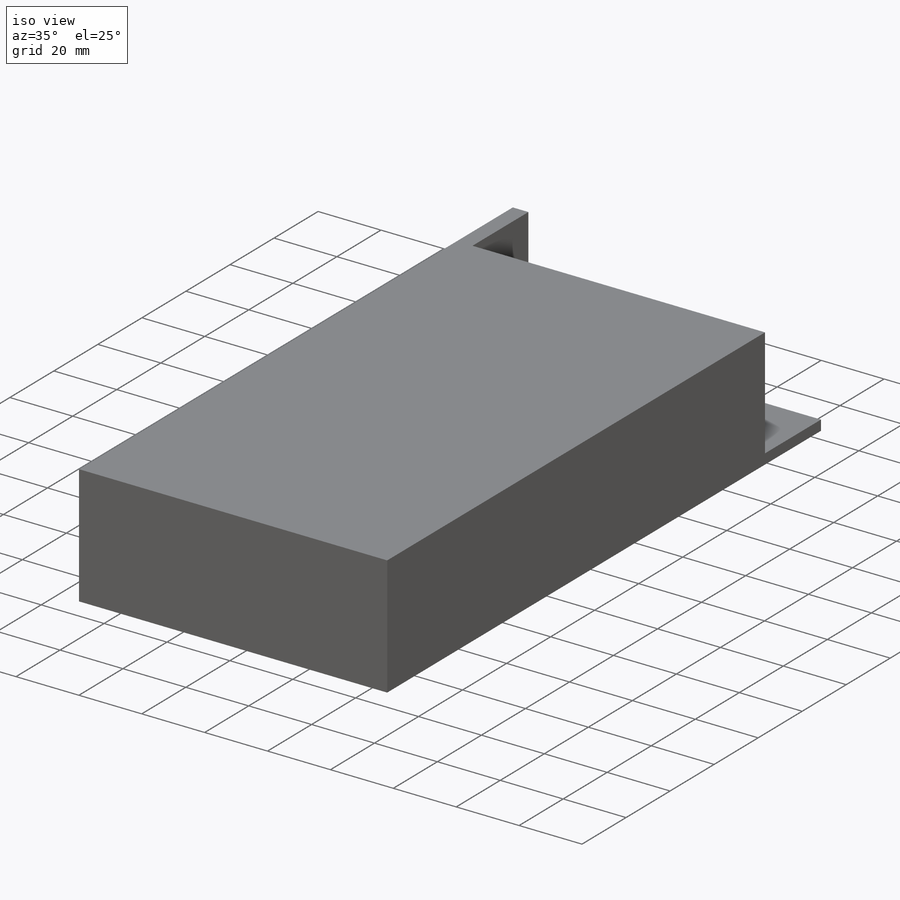
[diagram: iso view]
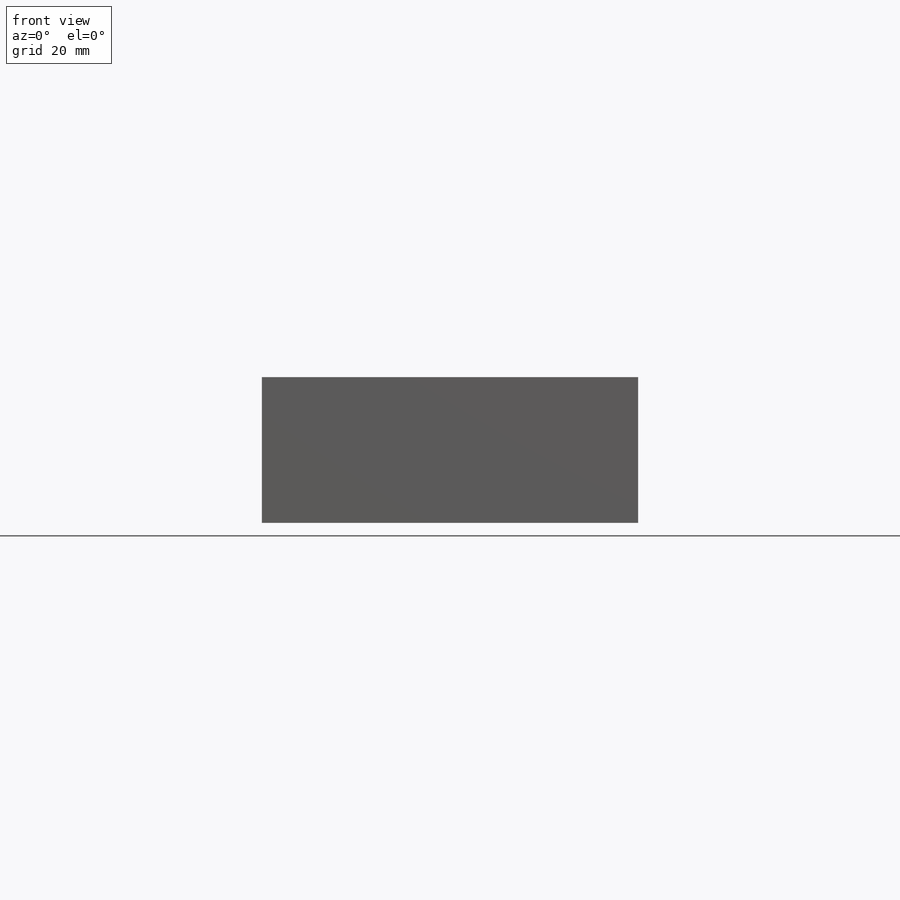
[diagram: front view]
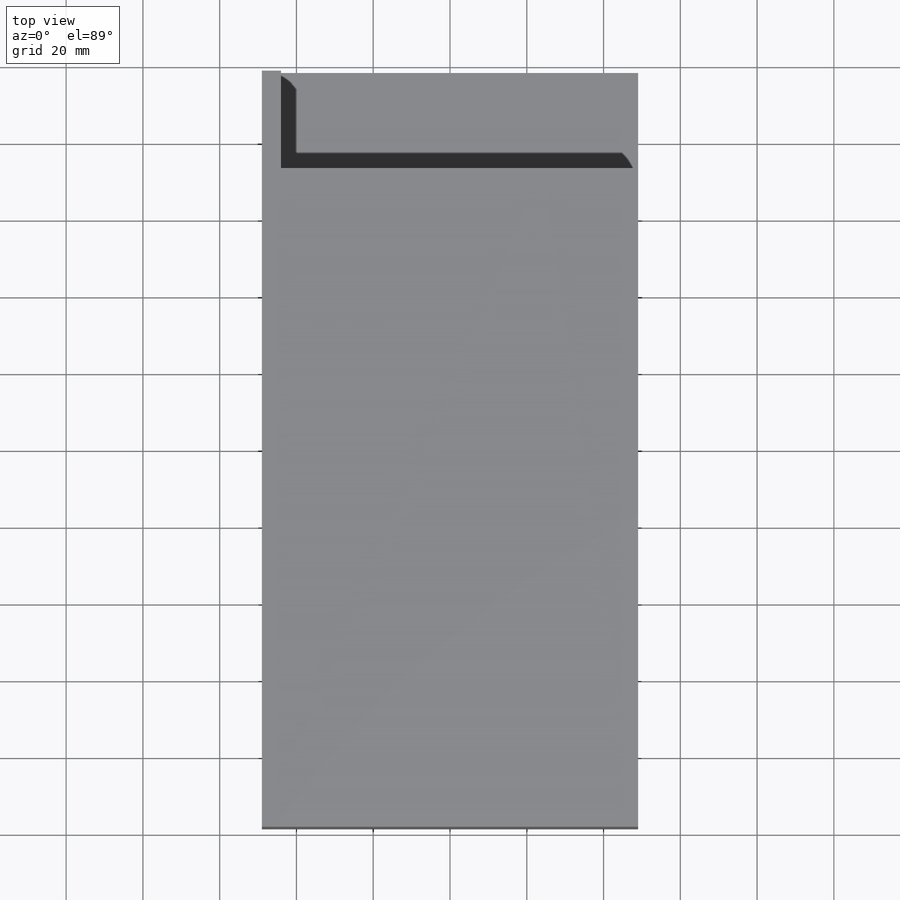
[diagram: top view]
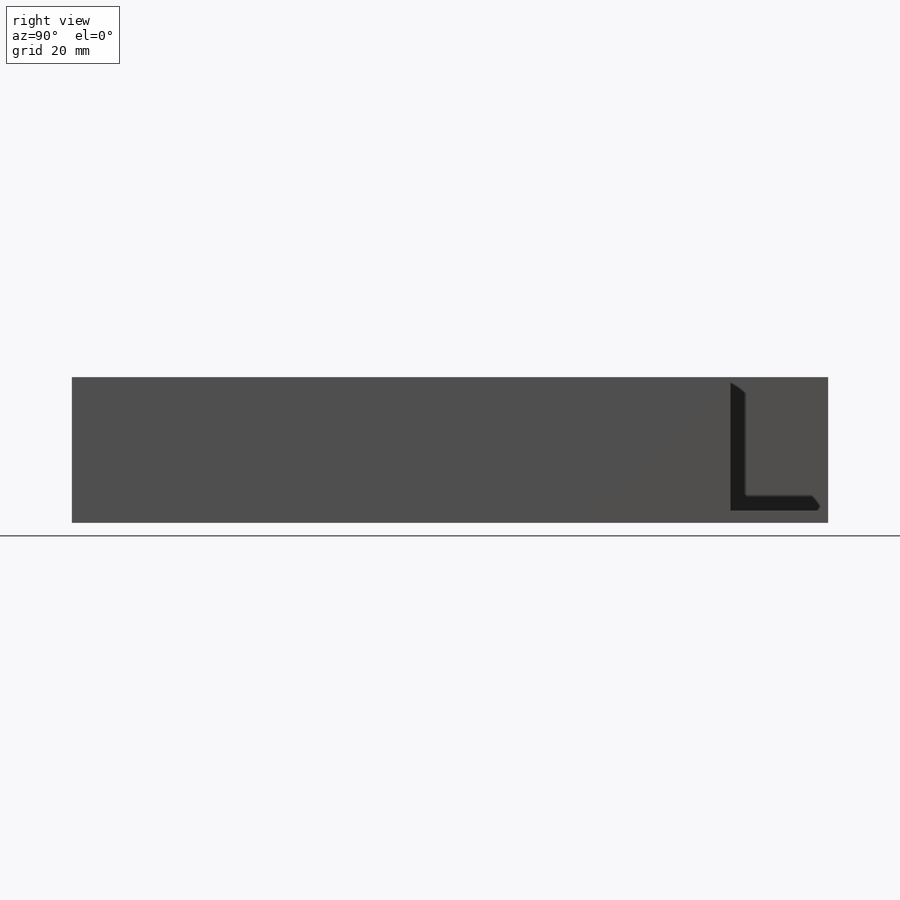
[diagram: right view]
SOLIDWORKS PART (.sldprt)
format: sldprt  version: not decoded by parser v0  size: 412,160 bytes
history: native  units: mm
features: sketch x5, cut_extrude x2, material x1, extrude x1, hole x1 (+14 scaffold rows collapsed)
feature tree (24):
  scaffold x14  (default folders/planes/origin — collapsed)
  material  "Material <not specified>"
  sketch  "Sketch1"  dims[D1=98.0mm D2=197.0mm]
  extrude  "Boss-Extrude1"  Depth=38mm
  hole  "M3x0.5 Tapped Hole1"  Diameter=2.5mm Depth=7.493mm
  sketch  "Sketch5"  dims[D1=80.0mm D2=120.0mm D3=62.0mm D4=40.0mm]
  sketch  "Sketch4"  dims[hole-wizard template sketch: 29 standard entries collapsed; hole parameters kept: c8.Tap Drill Depth=7.493mm c8.Thread Major Dia.=3.0mm c8.Thread Depth=5.9944mm c8.D5=~14.816244mm c8.Drill Angle=118.0deg]
  sketch  "Sketch6"
  cut_extrude  "Cut-Extrude2"  Depth=25.4mm
  sketch  "Sketch3"
  cut_extrude  "Cut-Extrude1"  Depth=0.1016mm
decode coverage: 7 of 9 modeling features carry decoded parameters
note: ~ marks probable driven/reference dimensions
note: suppression state not decoded; provenance and decode notes live in map.json
